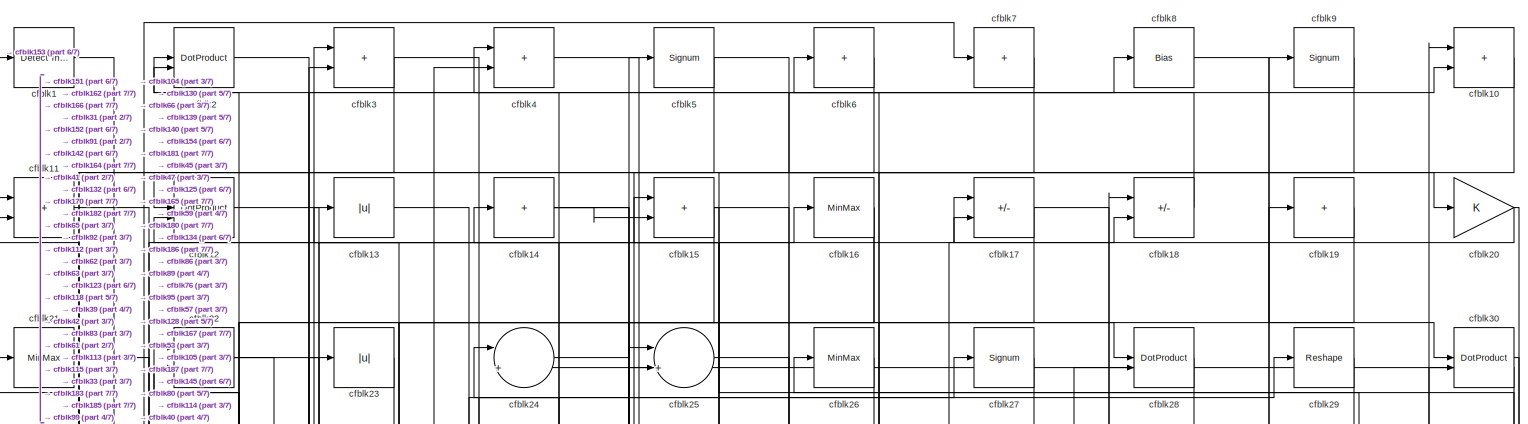
[diagram: root canvas - part 1/7, full width, top band]
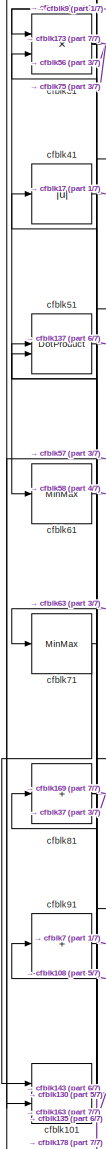
[diagram: root canvas - part 2/7, middle left region]
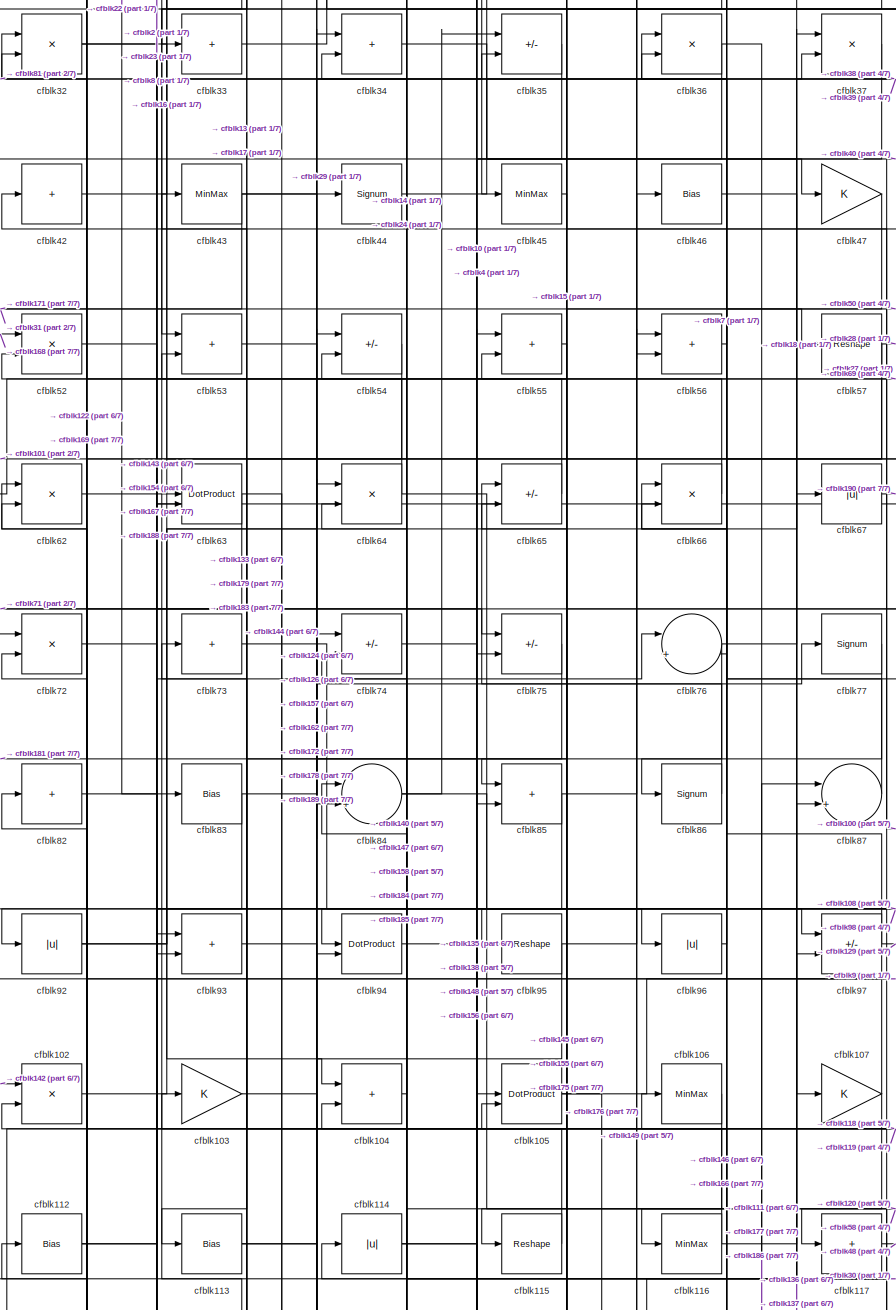
[diagram: root canvas - part 3/7, central region]
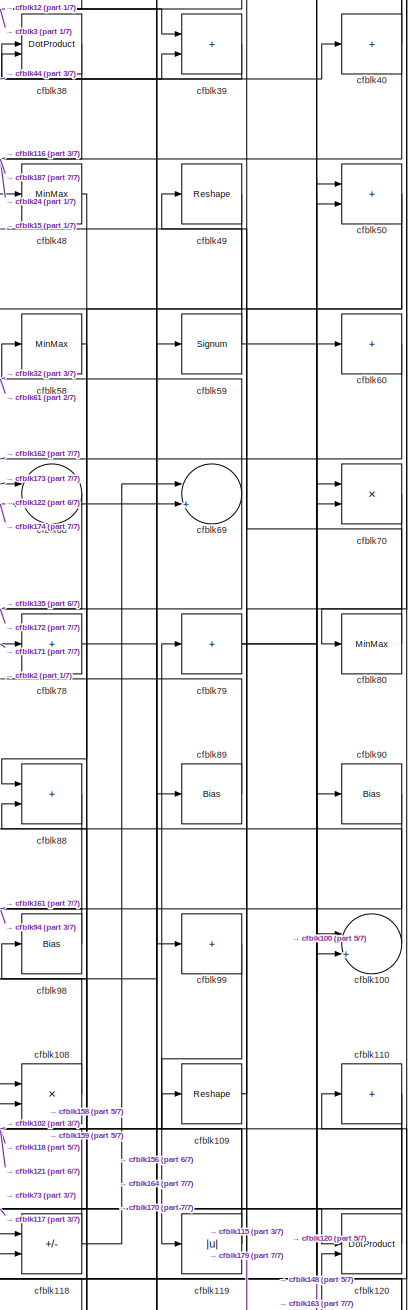
[diagram: root canvas - part 4/7, middle right region]
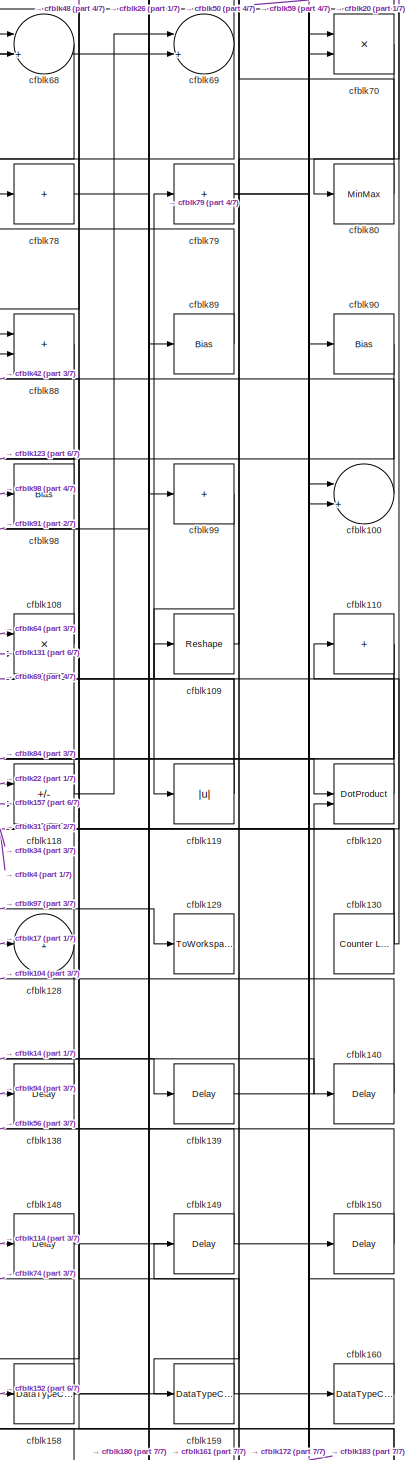
[diagram: root canvas - part 5/7, middle right region]
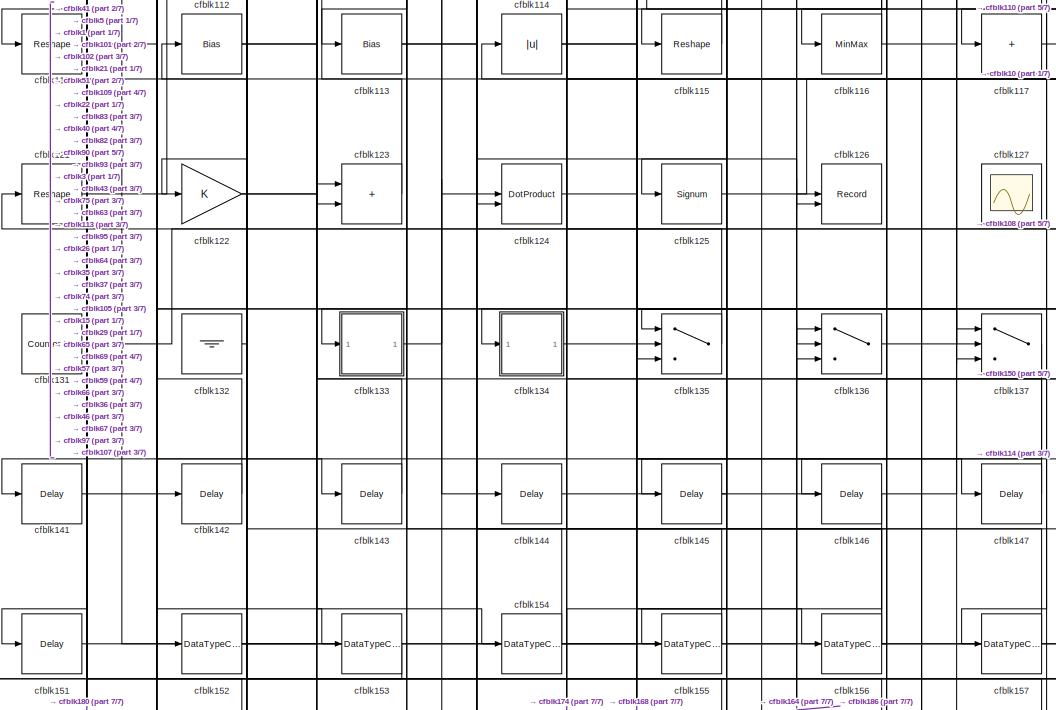
[diagram: root canvas - part 6/7, bottom center region]
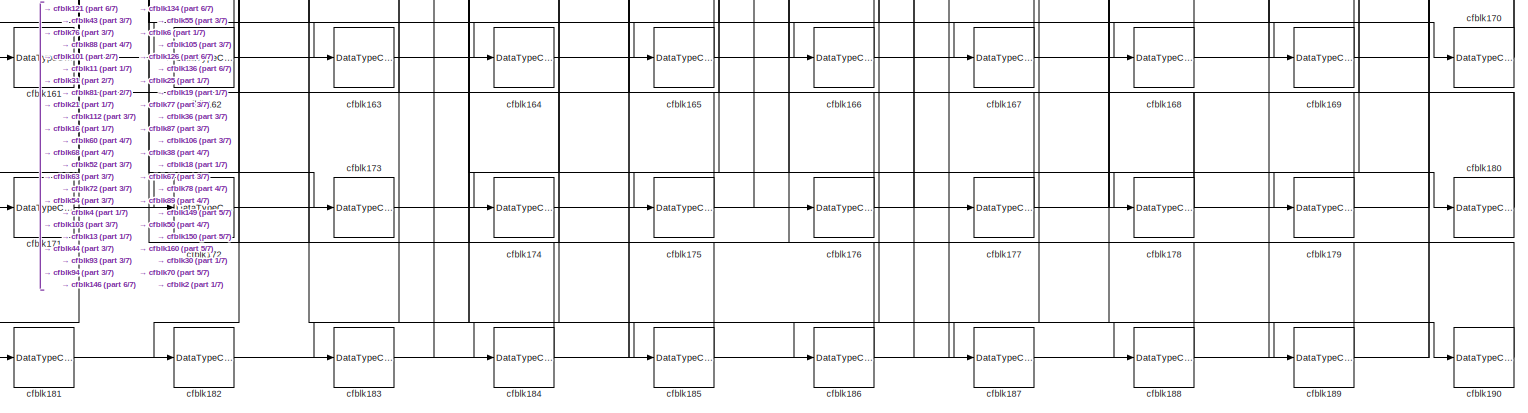
[diagram: root canvas - part 7/7, full width, bottom band]
MODEL slx_0fd09efd05f9
KIND model
CONFIG AbsTol = auto
CONFIG EnableMultiTasking = off
CONFIG FixedStep = auto
CONFIG MaxStep = auto
CONFIG MinStep = auto
CONFIG RelTol = 1e-3
CONFIG SampleTimeConstraint = Unconstrained
CONFIG SolverName = VariableStepAuto
CONFIG StartTime = 0.0
CONFIG StopTime = 10.0
BLOCK [Reference] cfblk1  REF=simulink/Logic and Bit
Operations/Detect
Increase
  LibrarySourceBlock = hdlsllib/Logic and Bit\nOperations/Detect\nIncrease
  SourceBlock = simulink/Logic and Bit\nOperations/Detect\nIncrease
  SourceType = Detect Increase
BLOCK [Sum] cfblk10
  IconShape = rectangular
BLOCK [Sum] cfblk100
  Inputs = |++
BLOCK [Sum] cfblk101
  IconShape = rectangular
BLOCK [Product] cfblk102
  Inputs = */
  RndMeth = Zero
  SaturateOnIntegerOverflow = on
BLOCK [Gain] cfblk103
BLOCK [Sum] cfblk104
  IconShape = rectangular
BLOCK [DotProduct] cfblk105
  OutDataTypeStr = Inherit: Inherit via internal rule
BLOCK [MinMax] cfblk106
BLOCK [Gain] cfblk107
BLOCK [Product] cfblk108
  Inputs = */
  RndMeth = Zero
  SaturateOnIntegerOverflow = on
BLOCK [Reshape] cfblk109
BLOCK [Sum] cfblk11
  IconShape = rectangular
BLOCK [Sum] cfblk110
  IconShape = rectangular
  Inputs = +
BLOCK [Reshape] cfblk111
BLOCK [Bias] cfblk112
  Bias = 0.0
  SaturateOnIntegerOverflow = off
BLOCK [Bias] cfblk113
  Bias = 0.0
  SaturateOnIntegerOverflow = off
BLOCK [Abs] cfblk114
  SaturateOnIntegerOverflow = off
BLOCK [Reshape] cfblk115
BLOCK [MinMax] cfblk116
BLOCK [Sum] cfblk117
  IconShape = rectangular
  Inputs = +
BLOCK [Sum] cfblk118
  IconShape = rectangular
  Inputs = +-
BLOCK [Abs] cfblk119
  SaturateOnIntegerOverflow = off
BLOCK [DotProduct] cfblk12
  OutDataTypeStr = Inherit: Inherit via internal rule
BLOCK [DotProduct] cfblk120
  OutDataTypeStr = Inherit: Inherit via internal rule
BLOCK [Reshape] cfblk121
BLOCK [Gain] cfblk122
BLOCK [Sum] cfblk123
  IconShape = rectangular
BLOCK [DotProduct] cfblk124
  OutDataTypeStr = Inherit: Inherit via internal rule
BLOCK [Signum] cfblk125
BLOCK [Record] cfblk126
  CompatibilityTag = XY
  FileSettingsInternal = {"entries":[{"content":{"excelSettings":{"content":{},"type":"Streamout.ExcelSettings"}},"type":"Streamout.FileSettingStorage","uuid":""}],"packageUris":["http:\/\/schema.mathworks.com\/mf0\/streamout_blocks\/R2020a"],"version":"1.0"}
  Layout = [1 1]
  SignalsInternal = {"entries":[{"content":{"signals":[{"content":{"blockPath":[],"dimensions":[1],"domain":"","lineColor":"#a2142f","plots":[1],"port":1,"signalID":4952,"signalName":"XY Graph:1"},"type":"RecordBlkView.Signal","uuid":""},{"content":{"blockPath":[],"dimensions":[1],"domain":"","lineColor":"#139fff","plots":[1],"port":2,"signalID":4955,"signalName":"XY Graph:2"},"type":"RecordBlkView.Signal","uuid":""}...<+146ch>
  VisualizationBindings = {"xyplotplugin":{"info":[{"series":[{"bindingParametersList":[{"parameter":"X-Axis","signalID":4952,"signalName":"XY Graph:1"},{"parameter":"Y-Axis","signalID":4955,"signalName":"XY Graph:2"}],"seriesID":55809}],"subplotID":1}]}}
  st = -1
BLOCK [Scope] cfblk127
  Floating = on
  NumInputPorts = 1
  ScopeSpecificationString = Simulink.scopes.TimeScopeBlockCfg('CurrentConfiguration', extmgr.ConfigurationSet(extmgr.Configuration('Core','General UI',true,'FigureColor',[0.156862745098039 0.156862745098039 0.156862745098039]),extmgr.Configuration('Core','Source UI',true),extmgr.Configuration('Sources','WiredSimulink',true,'DataLoggingVariableName','ScopeData1','DataLoggingSaveFormat','StructureWithTime','DataLoggingLimitDat...<+2713ch>
BLOCK [Outport] cfblk128
  VectorParamsAs1DForOutWhenUnconnected = off
BLOCK [ToWorkspace] cfblk129
  MaxDataPoints = inf
  SampleTime = -1
  SaveFormat = Timeseries
  VariableName = simout
BLOCK [Abs] cfblk13
  SaturateOnIntegerOverflow = off
BLOCK [Reference] cfblk130  REF=hdlsllib/Sources/Counter
Limited
  SourceBlock = hdlsllib/Sources/Counter\nLimited
  SourceType = Counter Limited
BLOCK [Reference] cfblk131  REF=hdlsllib/Sources/Counter
Limited
  SourceBlock = hdlsllib/Sources/Counter\nLimited
  SourceType = Counter Limited
BLOCK [Ground] cfblk132
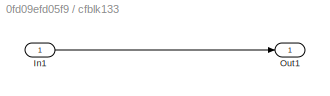
BLOCK [SubSystem] cfblk133
  LibrarySourceBlock = hdlsllib/Ports &\nSubsystems/Subsystem
BLOCK [Inport] cfblk133/In1
BLOCK [Outport] cfblk133/Out1
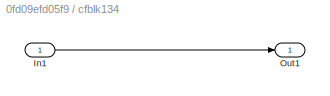
BLOCK [SubSystem] cfblk134
  LibrarySourceBlock = hdlsllib/Ports &\nSubsystems/Subsystem
BLOCK [Inport] cfblk134/In1
BLOCK [Outport] cfblk134/Out1
BLOCK [Switch] cfblk135
  InputSameDT = off
  SaturateOnIntegerOverflow = off
BLOCK [Switch] cfblk136
  InputSameDT = off
  SaturateOnIntegerOverflow = off
BLOCK [Switch] cfblk137
  InputSameDT = off
  SaturateOnIntegerOverflow = off
BLOCK [Delay] cfblk138
  InputPortMap = u0
  SampleTime = 1
BLOCK [Delay] cfblk139
  InputPortMap = u0
  SampleTime = 1
BLOCK [Sum] cfblk14
  IconShape = rectangular
  Inputs = +
BLOCK [Delay] cfblk140
  InputPortMap = u0
  SampleTime = 1
BLOCK [Delay] cfblk141
  InputPortMap = u0
  SampleTime = 1
BLOCK [Delay] cfblk142
  InputPortMap = u0
  SampleTime = 1
BLOCK [Delay] cfblk143
  InputPortMap = u0
  SampleTime = 1
BLOCK [Delay] cfblk144
  InputPortMap = u0
  SampleTime = 1
BLOCK [Delay] cfblk145
  InputPortMap = u0
  SampleTime = 1
BLOCK [Delay] cfblk146
  InputPortMap = u0
  SampleTime = 1
BLOCK [Delay] cfblk147
  InputPortMap = u0
  SampleTime = 1
BLOCK [Delay] cfblk148
  InputPortMap = u0
  SampleTime = 1
BLOCK [Delay] cfblk149
  InputPortMap = u0
  SampleTime = 1
BLOCK [Sum] cfblk15
  IconShape = rectangular
BLOCK [Delay] cfblk150
  InputPortMap = u0
  SampleTime = 1
BLOCK [Delay] cfblk151
  InputPortMap = u0
  SampleTime = 1
BLOCK [DataTypeConversion] cfblk152
  RndMeth = Floor
  SaturateOnIntegerOverflow = off
BLOCK [DataTypeConversion] cfblk153
  OutDataTypeStr = uint8
  RndMeth = Floor
  SaturateOnIntegerOverflow = off
BLOCK [DataTypeConversion] cfblk154
  RndMeth = Floor
  SaturateOnIntegerOverflow = off
BLOCK [DataTypeConversion] cfblk155
  OutDataTypeStr = uint8
  RndMeth = Floor
  SaturateOnIntegerOverflow = off
BLOCK [DataTypeConversion] cfblk156
  RndMeth = Floor
  SaturateOnIntegerOverflow = off
BLOCK [DataTypeConversion] cfblk157
  OutDataTypeStr = uint8
  RndMeth = Floor
  SaturateOnIntegerOverflow = off
BLOCK [DataTypeConversion] cfblk158
  OutDataTypeStr = uint8
  RndMeth = Floor
  SaturateOnIntegerOverflow = off
BLOCK [DataTypeConversion] cfblk159
  OutDataTypeStr = uint8
  RndMeth = Floor
  SaturateOnIntegerOverflow = off
BLOCK [MinMax] cfblk16
BLOCK [DataTypeConversion] cfblk160
  OutDataTypeStr = uint8
  RndMeth = Floor
  SaturateOnIntegerOverflow = off
BLOCK [DataTypeConversion] cfblk161
  OutDataTypeStr = uint8
  RndMeth = Floor
  SaturateOnIntegerOverflow = off
BLOCK [DataTypeConversion] cfblk162
  RndMeth = Floor
  SaturateOnIntegerOverflow = off
BLOCK [DataTypeConversion] cfblk163
  OutDataTypeStr = uint8
  RndMeth = Floor
  SaturateOnIntegerOverflow = off
BLOCK [DataTypeConversion] cfblk164
  RndMeth = Floor
  SaturateOnIntegerOverflow = off
BLOCK [DataTypeConversion] cfblk165
  OutDataTypeStr = uint8
  RndMeth = Floor
  SaturateOnIntegerOverflow = off
BLOCK [DataTypeConversion] cfblk166
  OutDataTypeStr = uint8
  RndMeth = Floor
  SaturateOnIntegerOverflow = off
BLOCK [DataTypeConversion] cfblk167
  RndMeth = Floor
  SaturateOnIntegerOverflow = off
BLOCK [DataTypeConversion] cfblk168
  OutDataTypeStr = uint8
  RndMeth = Floor
  SaturateOnIntegerOverflow = off
BLOCK [DataTypeConversion] cfblk169
  OutDataTypeStr = uint8
  RndMeth = Floor
  SaturateOnIntegerOverflow = off
BLOCK [Sum] cfblk17
  IconShape = rectangular
  Inputs = +-
BLOCK [DataTypeConversion] cfblk170
  RndMeth = Floor
  SaturateOnIntegerOverflow = off
BLOCK [DataTypeConversion] cfblk171
  OutDataTypeStr = uint8
  RndMeth = Floor
  SaturateOnIntegerOverflow = off
BLOCK [DataTypeConversion] cfblk172
  RndMeth = Floor
  SaturateOnIntegerOverflow = off
BLOCK [DataTypeConversion] cfblk173
  OutDataTypeStr = uint8
  RndMeth = Floor
  SaturateOnIntegerOverflow = off
BLOCK [DataTypeConversion] cfblk174
  OutDataTypeStr = uint8
  RndMeth = Floor
  SaturateOnIntegerOverflow = off
BLOCK [DataTypeConversion] cfblk175
  OutDataTypeStr = uint8
  RndMeth = Floor
  SaturateOnIntegerOverflow = off
BLOCK [DataTypeConversion] cfblk176
  OutDataTypeStr = uint8
  RndMeth = Floor
  SaturateOnIntegerOverflow = off
BLOCK [DataTypeConversion] cfblk177
  OutDataTypeStr = uint8
  RndMeth = Floor
  SaturateOnIntegerOverflow = off
BLOCK [DataTypeConversion] cfblk178
  RndMeth = Floor
  SaturateOnIntegerOverflow = off
BLOCK [DataTypeConversion] cfblk179
  OutDataTypeStr = uint8
  RndMeth = Floor
  SaturateOnIntegerOverflow = off
BLOCK [Sum] cfblk18
  IconShape = rectangular
  Inputs = +-
BLOCK [DataTypeConversion] cfblk180
  RndMeth = Floor
  SaturateOnIntegerOverflow = off
BLOCK [DataTypeConversion] cfblk181
  OutDataTypeStr = uint8
  RndMeth = Floor
  SaturateOnIntegerOverflow = off
BLOCK [DataTypeConversion] cfblk182
  OutDataTypeStr = uint8
  RndMeth = Floor
  SaturateOnIntegerOverflow = off
BLOCK [DataTypeConversion] cfblk183
  RndMeth = Floor
  SaturateOnIntegerOverflow = off
BLOCK [DataTypeConversion] cfblk184
  OutDataTypeStr = uint8
  RndMeth = Floor
  SaturateOnIntegerOverflow = off
BLOCK [DataTypeConversion] cfblk185
  OutDataTypeStr = uint8
  RndMeth = Floor
  SaturateOnIntegerOverflow = off
BLOCK [DataTypeConversion] cfblk186
  RndMeth = Floor
  SaturateOnIntegerOverflow = off
BLOCK [DataTypeConversion] cfblk187
  OutDataTypeStr = uint8
  RndMeth = Floor
  SaturateOnIntegerOverflow = off
BLOCK [DataTypeConversion] cfblk188
  OutDataTypeStr = uint8
  RndMeth = Floor
  SaturateOnIntegerOverflow = off
BLOCK [DataTypeConversion] cfblk189
  OutDataTypeStr = uint8
  RndMeth = Floor
  SaturateOnIntegerOverflow = off
BLOCK [Sum] cfblk19
  IconShape = rectangular
  Inputs = +
BLOCK [DataTypeConversion] cfblk190
  OutDataTypeStr = uint8
  RndMeth = Floor
  SaturateOnIntegerOverflow = off
BLOCK [DotProduct] cfblk2
  OutDataTypeStr = Inherit: Inherit via internal rule
BLOCK [Gain] cfblk20
BLOCK [MinMax] cfblk21
BLOCK [Sum] cfblk22
  IconShape = rectangular
BLOCK [Abs] cfblk23
  SaturateOnIntegerOverflow = off
BLOCK [Sum] cfblk24
  Inputs = |++
BLOCK [Sum] cfblk25
  Inputs = |++
BLOCK [MinMax] cfblk26
BLOCK [Signum] cfblk27
BLOCK [DotProduct] cfblk28
  OutDataTypeStr = Inherit: Inherit via internal rule
BLOCK [Reshape] cfblk29
BLOCK [Sum] cfblk3
  IconShape = rectangular
BLOCK [DotProduct] cfblk30
  OutDataTypeStr = Inherit: Inherit via internal rule
BLOCK [Product] cfblk31
  Inputs = */
  RndMeth = Zero
  SaturateOnIntegerOverflow = on
BLOCK [Product] cfblk32
  Inputs = */
  RndMeth = Zero
  SaturateOnIntegerOverflow = on
BLOCK [Sum] cfblk33
  IconShape = rectangular
  Inputs = +
BLOCK [Sum] cfblk34
  IconShape = rectangular
BLOCK [Sum] cfblk35
  IconShape = rectangular
  Inputs = +-
BLOCK [Product] cfblk36
  Inputs = */
  RndMeth = Zero
  SaturateOnIntegerOverflow = on
BLOCK [Product] cfblk37
  Inputs = */
  RndMeth = Zero
  SaturateOnIntegerOverflow = on
BLOCK [DotProduct] cfblk38
  OutDataTypeStr = Inherit: Inherit via internal rule
BLOCK [Sum] cfblk39
  IconShape = rectangular
BLOCK [Sum] cfblk4
  IconShape = rectangular
BLOCK [Sum] cfblk40
  IconShape = rectangular
  Inputs = +
BLOCK [Abs] cfblk41
  SaturateOnIntegerOverflow = off
BLOCK [Sum] cfblk42
  IconShape = rectangular
  Inputs = +
BLOCK [MinMax] cfblk43
BLOCK [Signum] cfblk44
BLOCK [MinMax] cfblk45
BLOCK [Bias] cfblk46
  Bias = 0.0
  SaturateOnIntegerOverflow = off
BLOCK [Gain] cfblk47
BLOCK [MinMax] cfblk48
BLOCK [Reshape] cfblk49
BLOCK [Signum] cfblk5
BLOCK [Sum] cfblk50
  IconShape = rectangular
BLOCK [DotProduct] cfblk51
  OutDataTypeStr = Inherit: Inherit via internal rule
BLOCK [Product] cfblk52
  Inputs = */
  RndMeth = Zero
  SaturateOnIntegerOverflow = on
BLOCK [Sum] cfblk53
  IconShape = rectangular
BLOCK [Sum] cfblk54
  IconShape = rectangular
  Inputs = +-
BLOCK [Sum] cfblk55
  IconShape = rectangular
BLOCK [Sum] cfblk56
  IconShape = rectangular
BLOCK [Reshape] cfblk57
BLOCK [MinMax] cfblk58
BLOCK [Signum] cfblk59
BLOCK [Sum] cfblk6
  IconShape = rectangular
  Inputs = +
BLOCK [Sum] cfblk60
  IconShape = rectangular
  Inputs = +
BLOCK [MinMax] cfblk61
BLOCK [Product] cfblk62
  Inputs = */
  RndMeth = Zero
  SaturateOnIntegerOverflow = on
BLOCK [DotProduct] cfblk63
  OutDataTypeStr = Inherit: Inherit via internal rule
BLOCK [Product] cfblk64
  Inputs = */
  RndMeth = Zero
  SaturateOnIntegerOverflow = on
BLOCK [Sum] cfblk65
  IconShape = rectangular
  Inputs = +-
BLOCK [Product] cfblk66
  Inputs = */
  RndMeth = Zero
  SaturateOnIntegerOverflow = on
BLOCK [Abs] cfblk67
  SaturateOnIntegerOverflow = off
BLOCK [Sum] cfblk68
  Inputs = |++
BLOCK [Sum] cfblk69
  Inputs = |++
BLOCK [Sum] cfblk7
  IconShape = rectangular
  Inputs = +
BLOCK [Product] cfblk70
  Inputs = */
  RndMeth = Zero
  SaturateOnIntegerOverflow = on
BLOCK [MinMax] cfblk71
BLOCK [Product] cfblk72
  Inputs = */
  RndMeth = Zero
  SaturateOnIntegerOverflow = on
BLOCK [Sum] cfblk73
  IconShape = rectangular
  Inputs = +
BLOCK [Sum] cfblk74
  IconShape = rectangular
  Inputs = +-
BLOCK [Sum] cfblk75
  IconShape = rectangular
  Inputs = +-
BLOCK [Sum] cfblk76
  Inputs = |++
BLOCK [Signum] cfblk77
BLOCK [Sum] cfblk78
  IconShape = rectangular
  Inputs = +
BLOCK [Sum] cfblk79
  IconShape = rectangular
  Inputs = +
BLOCK [Bias] cfblk8
  Bias = 0.0
  SaturateOnIntegerOverflow = off
BLOCK [MinMax] cfblk80
BLOCK [Sum] cfblk81
  IconShape = rectangular
  Inputs = +
BLOCK [Sum] cfblk82
  IconShape = rectangular
  Inputs = +
BLOCK [Bias] cfblk83
  Bias = 0.0
  SaturateOnIntegerOverflow = off
BLOCK [Sum] cfblk84
  Inputs = |++
BLOCK [Sum] cfblk85
  IconShape = rectangular
BLOCK [Signum] cfblk86
BLOCK [Sum] cfblk87
  Inputs = |++
BLOCK [Sum] cfblk88
  IconShape = rectangular
BLOCK [Bias] cfblk89
  Bias = 0.0
  SaturateOnIntegerOverflow = off
BLOCK [Signum] cfblk9
BLOCK [Bias] cfblk90
  Bias = 0.0
  SaturateOnIntegerOverflow = off
BLOCK [Sum] cfblk91
  IconShape = rectangular
  Inputs = +
BLOCK [Abs] cfblk92
  SaturateOnIntegerOverflow = off
BLOCK [Sum] cfblk93
  IconShape = rectangular
BLOCK [DotProduct] cfblk94
  OutDataTypeStr = Inherit: Inherit via internal rule
BLOCK [Reshape] cfblk95
BLOCK [Abs] cfblk96
  SaturateOnIntegerOverflow = off
BLOCK [Sum] cfblk97
  IconShape = rectangular
  Inputs = +-
BLOCK [Bias] cfblk98
  Bias = 0.0
  SaturateOnIntegerOverflow = off
BLOCK [Sum] cfblk99
  IconShape = rectangular
  Inputs = +
LINE cfblk100:1 -> cfblk42:1
NET cfblk101:1 -> cfblk143:1, cfblk163:1, cfblk51:1
LINE cfblk102:1 -> cfblk34:1
LINE cfblk103:1 -> cfblk178:1
LINE cfblk104:1 -> cfblk14:1
NET cfblk105:1 -> cfblk176:1, cfblk9:1
LINE cfblk106:1 -> cfblk184:1
NET cfblk107:1 -> cfblk155:1, cfblk62:2
LINE cfblk108:1 -> cfblk91:1
LINE cfblk109:1 -> cfblk49:1
LINE cfblk10:1 -> cfblk45:1
NET cfblk110:1 -> cfblk118:2, cfblk157:1
LINE cfblk111:1 -> cfblk137:2
NET cfblk112:1 -> cfblk76:1, cfblk8:1
NET cfblk113:1 -> cfblk126:2, cfblk77:1
NET cfblk114:1 -> cfblk136:2, cfblk148:1
LINE cfblk115:1 -> cfblk13:1
NET cfblk116:1 -> cfblk39:2, cfblk62:1
LINE cfblk117:1 -> cfblk48:1
NET cfblk118:1 -> cfblk69:1, cfblk84:1
NET cfblk119:1 -> cfblk102:2, cfblk73:1
LINE cfblk11:1 -> cfblk164:1
LINE cfblk120:1 -> cfblk79:1
LINE cfblk121:1 -> cfblk109:1
NET cfblk122:1 -> cfblk40:1, cfblk69:2
LINE cfblk123:1 -> cfblk3:1
LINE cfblk124:1 -> cfblk147:1
LINE cfblk125:1 -> cfblk10:1
LINE cfblk12:1 -> cfblk39:1
NET cfblk130:1 -> cfblk110:1, cfblk31:2, cfblk4:1
LINE cfblk131:1 -> cfblk108:2
LINE cfblk132:1 -> cfblk22:1
LINE cfblk133/In1:1 -> cfblk133/Out1:1
LINE cfblk133:1 -> cfblk124:1
LINE cfblk134/In1:1 -> cfblk134/Out1:1
LINE cfblk134:1 -> cfblk168:1
LINE cfblk135:1 -> cfblk41:1
LINE cfblk136:1 -> cfblk67:1
LINE cfblk137:1 -> cfblk141:1
LINE cfblk138:1 -> cfblk34:2
LINE cfblk139:1 -> cfblk120:2
LINE cfblk13:1 -> cfblk185:1
LINE cfblk140:1 -> cfblk104:2
LINE cfblk141:1 -> cfblk153:1
LINE cfblk142:1 -> cfblk102:1
LINE cfblk143:1 -> cfblk93:1
LINE cfblk144:1 -> cfblk97:2
LINE cfblk145:1 -> cfblk65:2
LINE cfblk146:1 -> cfblk174:1
LINE cfblk147:1 -> cfblk64:2
LINE cfblk148:1 -> cfblk50:2
LINE cfblk149:1 -> cfblk56:1
NET cfblk14:1 -> cfblk139:1, cfblk140:1, cfblk15:2
LINE cfblk150:1 -> cfblk123:1
LINE cfblk151:1 -> cfblk3:2
NET cfblk152:1 -> cfblk136:1, cfblk90:1
LINE cfblk153:1 -> cfblk1:1
NET cfblk154:1 -> cfblk5:1, cfblk64:1
LINE cfblk155:1 -> cfblk82:1
NET cfblk156:1 -> cfblk105:2, cfblk43:1, cfblk59:1, cfblk66:2
LINE cfblk157:1 -> cfblk74:1
LINE cfblk158:1 -> cfblk74:2
LINE cfblk159:1 -> cfblk98:1
NET cfblk15:1 -> cfblk125:1, cfblk57:1, cfblk92:1
LINE cfblk160:1 -> cfblk70:1
LINE cfblk161:1 -> cfblk70:2
NET cfblk162:1 -> cfblk21:1, cfblk94:2
LINE cfblk163:1 -> cfblk60:1
NET cfblk164:1 -> cfblk136:3, cfblk89:1
LINE cfblk165:1 -> cfblk11:1
LINE cfblk166:1 -> cfblk11:2
NET cfblk167:1 -> cfblk106:1, cfblk18:1
LINE cfblk168:1 -> cfblk52:1
LINE cfblk169:1 -> cfblk52:2
NET cfblk16:1 -> cfblk113:1, cfblk182:1
NET cfblk170:1 -> cfblk2:2, cfblk88:2
LINE cfblk171:1 -> cfblk78:1
NET cfblk172:1 -> cfblk160:1, cfblk44:1
LINE cfblk173:1 -> cfblk68:1
LINE cfblk174:1 -> cfblk68:2
LINE cfblk175:1 -> cfblk112:1
LINE cfblk176:1 -> cfblk55:1
LINE cfblk177:1 -> cfblk55:2
NET cfblk178:1 -> cfblk105:1, cfblk81:1
LINE cfblk179:1 -> cfblk103:1
NET cfblk17:1 -> cfblk128:1, cfblk33:1
NET cfblk180:1 -> cfblk121:1, cfblk149:1
LINE cfblk181:1 -> cfblk25:1
LINE cfblk182:1 -> cfblk25:2
NET cfblk183:1 -> cfblk150:1, cfblk4:2, cfblk87:2
LINE cfblk184:1 -> cfblk54:1
LINE cfblk185:1 -> cfblk54:2
NET cfblk186:1 -> cfblk126:1, cfblk30:2, cfblk87:1
LINE cfblk187:1 -> cfblk19:1
LINE cfblk188:1 -> cfblk63:1
LINE cfblk189:1 -> cfblk72:1
LINE cfblk18:1 -> cfblk6:1
LINE cfblk190:1 -> cfblk72:2
LINE cfblk19:1 -> cfblk186:1
LINE cfblk1:1 -> cfblk152:1
NET cfblk20:1 -> cfblk17:2, cfblk80:1
LINE cfblk21:1 -> cfblk142:1
NET cfblk22:1 -> cfblk118:1, cfblk83:1
LINE cfblk23:1 -> cfblk61:1
LINE cfblk24:1 -> cfblk28:1
LINE cfblk25:1 -> cfblk180:1
LINE cfblk26:1 -> cfblk134:1
LINE cfblk27:1 -> cfblk95:1
LINE cfblk28:1 -> cfblk53:1
LINE cfblk29:1 -> cfblk145:1
LINE cfblk2:1 -> cfblk63:2
LINE cfblk30:1 -> cfblk114:1
NET cfblk31:1 -> cfblk173:1, cfblk56:2, cfblk75:2
NET cfblk32:1 -> cfblk104:1, cfblk75:1
LINE cfblk33:1 -> cfblk29:1
LINE cfblk34:1 -> cfblk107:1
LINE cfblk35:1 -> cfblk135:2
NET cfblk36:1 -> cfblk111:1, cfblk177:1
LINE cfblk37:1 -> cfblk135:3
LINE cfblk38:1 -> cfblk187:1
LINE cfblk39:1 -> cfblk38:2
NET cfblk3:1 -> cfblk12:1, cfblk99:1
NET cfblk40:1 -> cfblk116:1, cfblk12:2, cfblk24:2
LINE cfblk41:1 -> cfblk17:1
LINE cfblk42:1 -> cfblk16:1
NET cfblk43:1 -> cfblk171:1, cfblk35:2, cfblk84:2
LINE cfblk44:1 -> cfblk38:1
LINE cfblk45:1 -> cfblk85:1
LINE cfblk46:1 -> cfblk137:1
LINE cfblk47:1 -> cfblk76:2
LINE cfblk48:1 -> cfblk158:1
LINE cfblk49:1 -> cfblk88:1
LINE cfblk4:1 -> cfblk47:1
NET cfblk50:1 -> cfblk115:1, cfblk179:1
LINE cfblk51:1 -> cfblk137:3
LINE cfblk52:1 -> cfblk167:1
LINE cfblk53:1 -> cfblk85:2
LINE cfblk54:1 -> cfblk183:1
LINE cfblk55:1 -> cfblk175:1
LINE cfblk56:1 -> cfblk36:1
NET cfblk57:1 -> cfblk101:2, cfblk146:1, cfblk28:2
LINE cfblk58:1 -> cfblk117:1
NET cfblk59:1 -> cfblk100:1, cfblk15:1
NET cfblk5:1 -> cfblk151:1, cfblk20:1
LINE cfblk60:1 -> cfblk162:1
LINE cfblk61:1 -> cfblk58:1
LINE cfblk62:1 -> cfblk23:1
NET cfblk63:1 -> cfblk144:1, cfblk71:1
NET cfblk64:1 -> cfblk108:1, cfblk53:2
LINE cfblk65:1 -> cfblk22:2
LINE cfblk66:1 -> cfblk24:1
LINE cfblk67:1 -> cfblk190:1
LINE cfblk68:1 -> cfblk172:1
NET cfblk69:1 -> cfblk135:1, cfblk32:2
LINE cfblk6:1 -> cfblk165:1
LINE cfblk70:1 -> cfblk159:1
NET cfblk71:1 -> cfblk101:1, cfblk51:2
LINE cfblk72:1 -> cfblk188:1
LINE cfblk73:1 -> cfblk96:1
LINE cfblk74:1 -> cfblk156:1
LINE cfblk75:1 -> cfblk133:1
NET cfblk76:1 -> cfblk181:1, cfblk18:2
LINE cfblk77:1 -> cfblk166:1
LINE cfblk78:1 -> cfblk170:1
NET cfblk79:1 -> cfblk100:2, cfblk50:1
LINE cfblk7:1 -> cfblk86:1
LINE cfblk80:1 -> cfblk26:1
NET cfblk81:1 -> cfblk169:1, cfblk37:2
LINE cfblk82:1 -> cfblk154:1
NET cfblk83:1 -> cfblk122:1, cfblk27:1
NET cfblk84:1 -> cfblk120:1, cfblk35:1
NET cfblk85:1 -> cfblk46:1, cfblk93:2
LINE cfblk86:1 -> cfblk65:1
LINE cfblk87:1 -> cfblk32:1
LINE cfblk88:1 -> cfblk161:1
LINE cfblk89:1 -> cfblk2:1
LINE cfblk8:1 -> cfblk30:1
LINE cfblk90:1 -> cfblk123:2
LINE cfblk91:1 -> cfblk7:1
NET cfblk92:1 -> cfblk37:1, cfblk97:1
LINE cfblk93:1 -> cfblk189:1
LINE cfblk94:1 -> cfblk138:1
NET cfblk95:1 -> cfblk10:2, cfblk124:2
LINE cfblk96:1 -> cfblk36:2
NET cfblk97:1 -> cfblk129:1, cfblk66:1
LINE cfblk98:1 -> cfblk94:1
LINE cfblk99:1 -> cfblk119:1
LINE cfblk9:1 -> cfblk31:1
note: NET lines group one-source signal fan-out (src -> all destinations, sorted); 1:1 wires keep LINE
